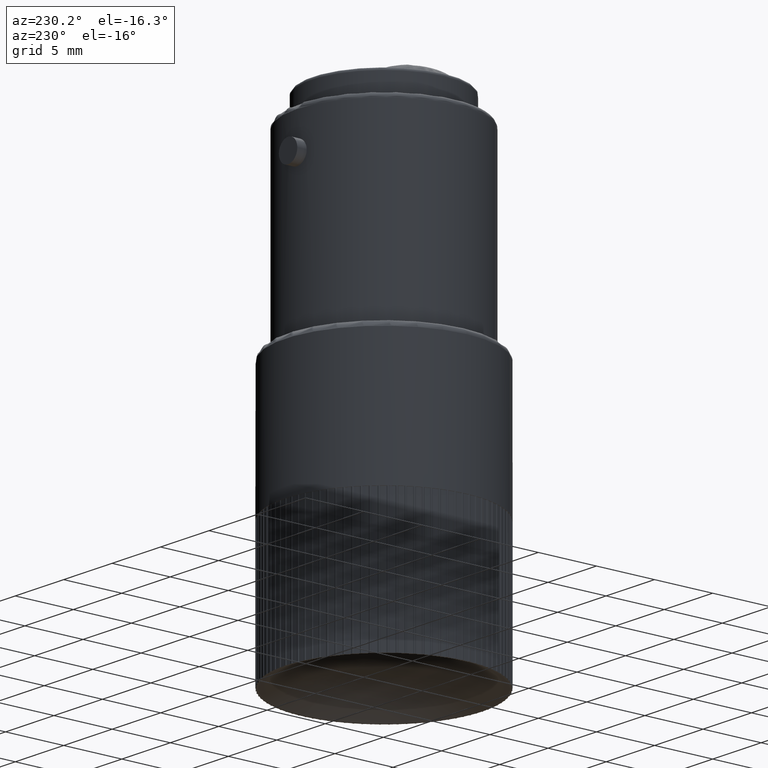
[diagram: clean part render]
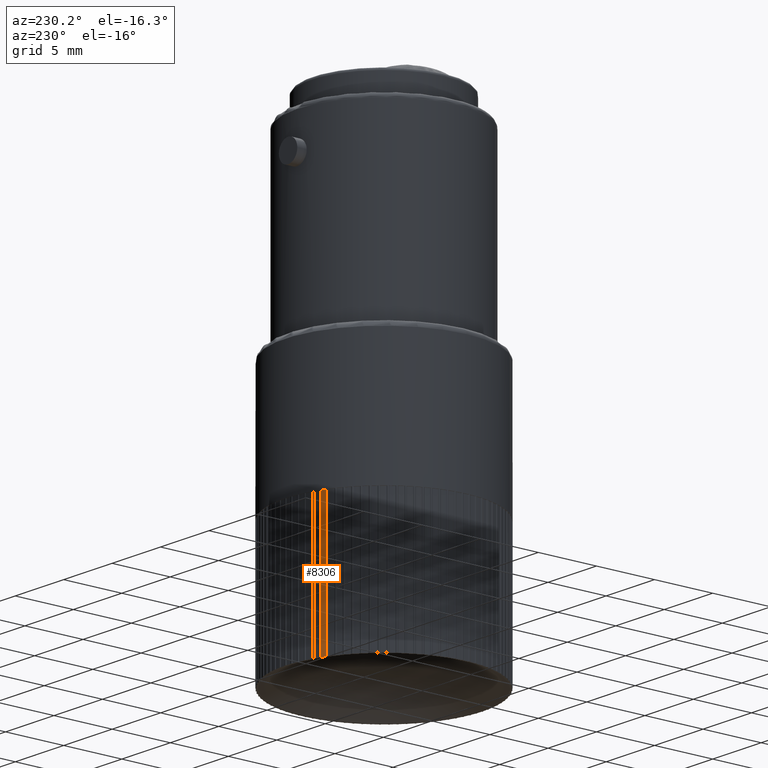
[diagram: same view with one face highlighted and labeled with its STEP entity id]
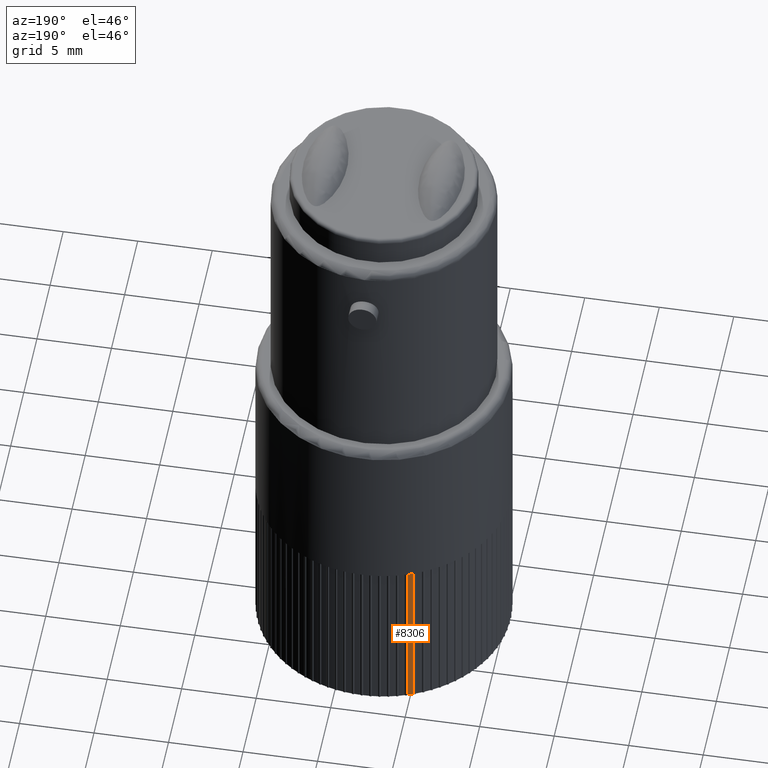
[diagram: same view with one face highlighted and labeled with its STEP entity id]
A machine part, auxiliary view. The second image highlights one B-rep face of the part: STEP entity #8306.
A second angle (auxiliary view) of the same face is appended — the face is thin or edge-on in the first view.
In plain terms, the highlighted cylindrical surface (partial cylindrical patch) has radius 8.45 mm, axis along (0, 0, -1).
Its self-contained STEP definition (entity closure, byte-faithful):
#296=CARTESIAN_POINT('',(-14.917769250032830,13.645493345376529,-11.500000000000002));
#297=VERTEX_POINT('',#296);
#322=CARTESIAN_POINT('',(-14.917769250032830,13.645493345376529,-23.000000000000004));
#323=VERTEX_POINT('',#322);
#331=CARTESIAN_POINT('',(-14.917769250032830,13.645493345376529,-11.500000000000002));
#332=DIRECTION('',(0.0,0.0,-1.0));
#333=VECTOR('',#332,11.500000000000002);
#334=LINE('',#331,#333);
#335=EDGE_CURVE('',#297,#323,#334,.T.);
#356=CARTESIAN_POINT('',(-15.306000966818214,13.488637550094232,-11.500000000000002));
#357=VERTEX_POINT('',#356);
#365=CARTESIAN_POINT('',(-15.306000966818214,13.488637550094232,-23.000000000000004));
#366=VERTEX_POINT('',#365);
#367=CARTESIAN_POINT('',(-15.306000966818214,13.488637550094232,-23.000000000000004));
#368=DIRECTION('',(0.0,0.0,1.0));
#369=VECTOR('',#368,11.500000000000002);
#370=LINE('',#367,#369);
#371=EDGE_CURVE('',#366,#357,#370,.T.);
#6656=CARTESIAN_POINT('',(-11.947431124239413,5.734766993235528,-11.500000000000002));
#6657=DIRECTION('',(0.0,0.0,1.0));
#6658=DIRECTION('',(1.0,0.0,0.0));
#6659=AXIS2_PLACEMENT_3D('',#6656,#6657,#6658);
#6660=CIRCLE('',#6659,8.449999999999999);
#6661=EDGE_CURVE('',#297,#357,#6660,.T.);
#8289=CARTESIAN_POINT('',(-11.947431124239413,5.734766993235528,-11.500000000000002));
#8290=DIRECTION('',(0.0,0.0,-1.0));
#8291=DIRECTION('',(1.0,0.0,0.0));
#8292=AXIS2_PLACEMENT_3D('',#8289,#8290,#8291);
#8293=CYLINDRICAL_SURFACE('',#8292,8.449999999999999);
#8294=ORIENTED_EDGE('',*,*,#335,.T.);
#8295=CARTESIAN_POINT('',(-11.947431124239413,5.734766993235528,-23.000000000000004));
#8296=DIRECTION('',(0.0,0.0,1.0));
#8297=DIRECTION('',(1.0,0.0,0.0));
#8298=AXIS2_PLACEMENT_3D('',#8295,#8296,#8297);
#8299=CIRCLE('',#8298,8.449999999999999);
#8300=EDGE_CURVE('',#323,#366,#8299,.T.);
#8301=ORIENTED_EDGE('',*,*,#8300,.T.);
#8302=ORIENTED_EDGE('',*,*,#371,.T.);
#8303=ORIENTED_EDGE('',*,*,#6661,.F.);
#8304=EDGE_LOOP('',(#8294,#8301,#8302,#8303));
#8305=FACE_OUTER_BOUND('',#8304,.T.);
#8306=ADVANCED_FACE('',(#8305),#8293,.T.);